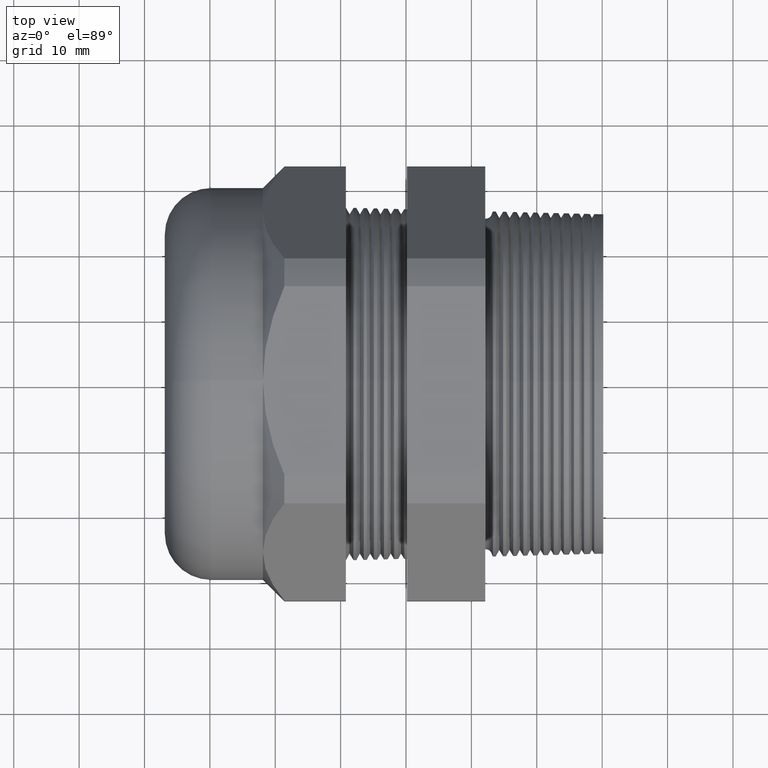
[diagram: clean part render]
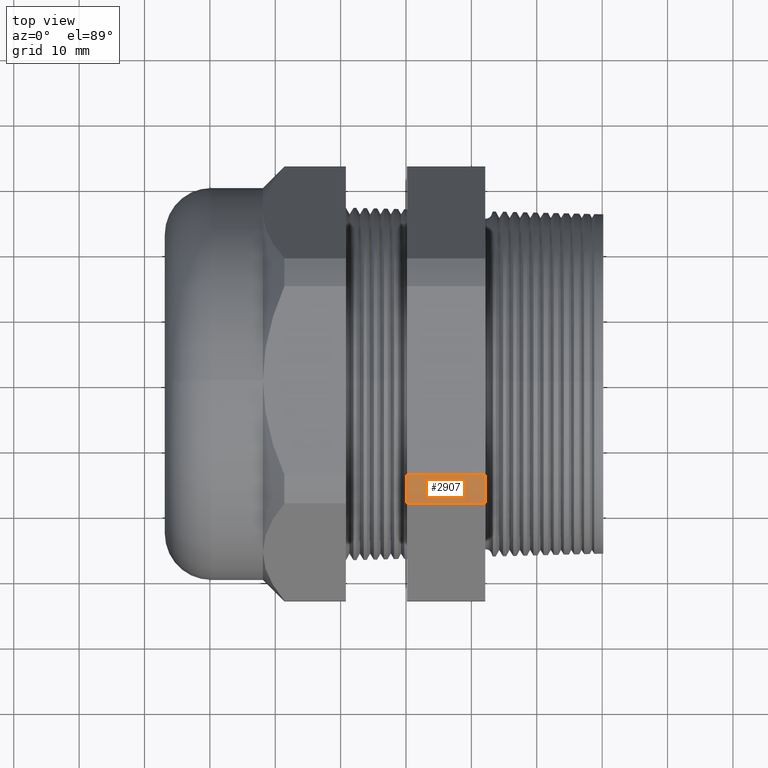
[diagram: same view with one face highlighted and labeled with its STEP entity id]
A machine part, top view. The second image highlights one B-rep face of the part: STEP entity #2907.
In plain terms, the highlighted cylindrical surface (partial cylindrical patch) has radius 33.2689 mm, axis along (-1, 0, 0).
Its self-contained STEP definition (entity closure, byte-faithful):
#210 = DIRECTION ( 'NONE',  ( 0.0000000000000000000, 0.0000000000000000000, 1.000000000000000000 ) ) ;
#211 = DIRECTION ( 'NONE',  ( -1.000000000000000000, 0.0000000000000000000, 0.0000000000000000000 ) ) ;
#212 = CARTESIAN_POINT ( 'NONE',  ( 0.4000000000000000800, 0.0000000000000000000, 0.0000000000000000000 ) ) ;
#213 = AXIS2_PLACEMENT_3D ( 'NONE', #212, #211, #210 ) ;
#215 = CYLINDRICAL_SURFACE ( 'NONE', #213, 1.309800000000000100 ) ;
#216 = FACE_OUTER_BOUND ( 'NONE', #2900, .T. ) ;
#222 = DIRECTION ( 'NONE',  ( -1.000000000000000000, 0.0000000000000000000, 0.0000000000000000000 ) ) ;
#223 = VECTOR ( 'NONE', #222, 39.37007874015748100 ) ;
#224 = CARTESIAN_POINT ( 'NONE',  ( 0.4000000000000000800, -0.5684857430050480600, 1.179999999999999300 ) ) ;
#225 = LINE ( 'NONE', #224, #223 ) ;
#226 = CARTESIAN_POINT ( 'NONE',  ( -0.7824400000000001400, -0.5684857430050480600, 1.179999999999999300 ) ) ;
#236 = CARTESIAN_POINT ( 'NONE',  ( -0.7824400000000001400, -0.7376671049631149400, 1.082323095131641800 ) ) ;
#290 = DIRECTION ( 'NONE',  ( -1.000000000000000000, 0.0000000000000000000, 0.0000000000000000000 ) ) ;
#291 = VECTOR ( 'NONE', #290, 39.37007874015748100 ) ;
#292 = CARTESIAN_POINT ( 'NONE',  ( 0.4000000000000000800, -0.7376671049631149400, 1.082323095131641800 ) ) ;
#293 = LINE ( 'NONE', #292, #291 ) ;
#1239 = CARTESIAN_POINT ( 'NONE',  ( -0.3100000000000000000, -0.7376671049631149400, 1.082323095131641800 ) ) ;
#1240 = DIRECTION ( 'NONE',  ( 0.0000000000000000000, 0.0000000000000000000, -1.000000000000000000 ) ) ;
#1241 = DIRECTION ( 'NONE',  ( 1.000000000000000000, 0.0000000000000000000, 0.0000000000000000000 ) ) ;
#1242 = CARTESIAN_POINT ( 'NONE',  ( -0.3100000000000000000, 0.0000000000000000000, 0.0000000000000000000 ) ) ;
#1243 = AXIS2_PLACEMENT_3D ( 'NONE', #1242, #1241, #1240 ) ;
#1244 = CIRCLE ( 'NONE', #1243, 1.309800000000000100 ) ;
#1284 = CARTESIAN_POINT ( 'NONE',  ( -0.3100000000000000000, -0.5684857430050480600, 1.179999999999999300 ) ) ;
#1792 = DIRECTION ( 'NONE',  ( 0.0000000000000000000, 0.0000000000000000000, 1.000000000000000000 ) ) ;
#1793 = DIRECTION ( 'NONE',  ( -1.000000000000000000, 0.0000000000000000000, 0.0000000000000000000 ) ) ;
#1794 = CARTESIAN_POINT ( 'NONE',  ( -0.7824400000000001400, 0.0000000000000000000, 0.0000000000000000000 ) ) ;
#1795 = AXIS2_PLACEMENT_3D ( 'NONE', #1794, #1793, #1792 ) ;
#1796 = CIRCLE ( 'NONE', #1795, 1.309800000000000100 ) ;
#2892 = VERTEX_POINT ( 'NONE', #226 ) ;
#2893 = ORIENTED_EDGE ( 'NONE', *, *, #3706, .F. ) ;
#2894 = EDGE_CURVE ( 'NONE', #3456, #2892, #225, .T. ) ;
#2895 = ORIENTED_EDGE ( 'NONE', *, *, #2894, .T. ) ;
#2897 = ORIENTED_EDGE ( 'NONE', *, *, #2924, .F. ) ;
#2898 = ORIENTED_EDGE ( 'NONE', *, *, #3447, .F. ) ;
#2900 = EDGE_LOOP ( 'NONE', ( #2897, #2898, #2895, #2893 ) ) ;
#2907 = ADVANCED_FACE ( 'NONE', ( #216 ), #215, .T. ) ;
#2922 = VERTEX_POINT ( 'NONE', #236 ) ;
#2924 = EDGE_CURVE ( 'NONE', #3448, #2922, #293, .T. ) ;
#3447 = EDGE_CURVE ( 'NONE', #3456, #3448, #1244, .T. ) ;
#3448 = VERTEX_POINT ( 'NONE', #1239 ) ;
#3456 = VERTEX_POINT ( 'NONE', #1284 ) ;
#3706 = EDGE_CURVE ( 'NONE', #2922, #2892, #1796, .T. ) ;